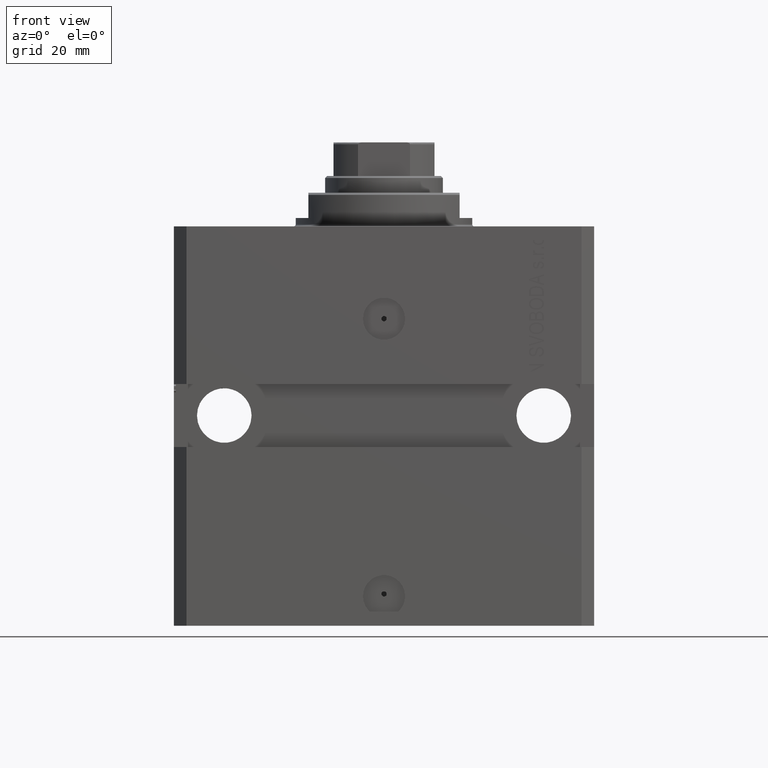
[diagram: clean part render]
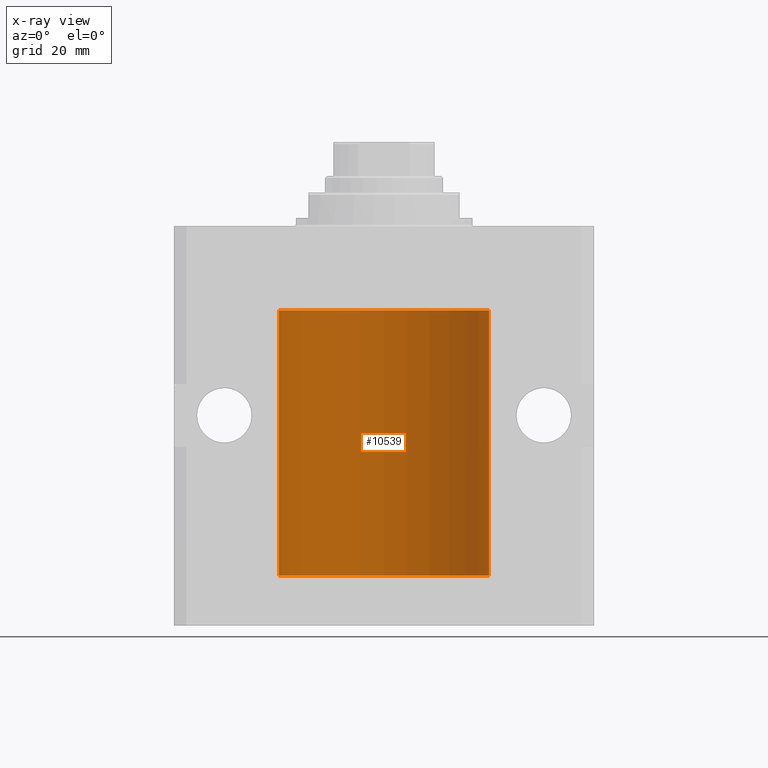
[diagram: x-ray — body ghosted, one internal face saturated and labeled with its STEP entity id]
A machine part, front view, then the same camera in x-ray: the body is ghosted and one INTERNAL B-rep face — a face not visible from any outside direction — is saturated and labeled: STEP entity #10539.
In plain terms, the highlighted cylindrical surface (partial cylindrical patch) has radius 25 mm, axis along (0, 0, 1).
Its self-contained STEP definition (entity closure, byte-faithful):
#59 = VERTEX_POINT ( 'NONE', #37948 ) ;
#576 = ORIENTED_EDGE ( 'NONE', *, *, #23678, .T. ) ;
#1169 = VECTOR ( 'NONE', #37389, 1000.000000000000000 ) ;
#1520 = ORIENTED_EDGE ( 'NONE', *, *, #21362, .F. ) ;
#1879 = DIRECTION ( 'NONE',  ( 1.000000000000000000, 0.000000000000000000, 0.000000000000000000 ) ) ;
#1985 = CARTESIAN_POINT ( 'NONE',  ( 0.000000000000000000, 0.000000000000000000, -20.00000000000000355 ) ) ;
#2143 = CARTESIAN_POINT ( 'NONE',  ( 24.99711042419772866, 0.3844422150124099380, -25.49948233212518645 ) ) ;
#2391 = CARTESIAN_POINT ( 'NONE',  ( 25.00000000000008171, 3.486950283966777142E-13, -24.37499999999673150 ) ) ;
#2590 = ORIENTED_EDGE ( 'NONE', *, *, #3292, .T. ) ;
#3113 = CARTESIAN_POINT ( 'NONE',  ( 24.99711042419772511, 0.3844422150124162108, -80.99948233212519710 ) ) ;
#3189 = CARTESIAN_POINT ( 'NONE',  ( 25.00000000000000000, 0.000000000000000000, -83.09999999999999432 ) ) ;
#3292 = EDGE_CURVE ( 'NONE', #59, #6021, #31117, .T. ) ;
#4212 = CARTESIAN_POINT ( 'NONE',  ( 24.99218627891505307, 0.6250000000082325258, -24.99999999999907629 ) ) ;
#4307 = VECTOR ( 'NONE', #32625, 1000.000000000000000 ) ;
#4349 = CARTESIAN_POINT ( 'NONE',  ( 24.99999999999999645, 0.1631302137355208348, -79.87500000000017053 ) ) ;
#4726 = DIRECTION ( 'NONE',  ( 0.000000000000000000, 0.000000000000000000, 1.000000000000000000 ) ) ;
#5363 = VERTEX_POINT ( 'NONE', #27335 ) ;
#5800 = VECTOR ( 'NONE', #47279, 1000.000000000000000 ) ;
#6021 = VERTEX_POINT ( 'NONE', #47367 ) ;
#6266 = CARTESIAN_POINT ( 'NONE',  ( 24.99218627891524136, 0.6250000000003219647, -80.66310615504829684 ) ) ;
#6898 = DIRECTION ( 'NONE',  ( 1.000000000000000000, 0.000000000000000000, 0.000000000000000000 ) ) ;
#8183 = FACE_OUTER_BOUND ( 'NONE', #19813, .T. ) ;
#9942 = VECTOR ( 'NONE', #36428, 1000.000000000000000 ) ;
#10124 = CARTESIAN_POINT ( 'NONE',  ( 24.99812887437770570, 0.3150953964769092064, -81.04594609348566792 ) ) ;
#10421 = EDGE_CURVE ( 'NONE', #37759, #59, #11106, .T. ) ;
#10504 = CARTESIAN_POINT ( 'NONE',  ( 25.00000000000000000, 0.000000000000000000, -83.09999999999999432 ) ) ;
#10539 = ADVANCED_FACE ( 'NONE', ( #8183 ), #22915, .F. ) ;
#10597 = CARTESIAN_POINT ( 'NONE',  ( 24.99218627891505307, 0.6250000000082391871, -80.49999999999907629 ) ) ;
#11106 = LINE ( 'NONE', #14982, #1169 ) ;
#11529 = EDGE_CURVE ( 'NONE', #11968, #45428, #25148, .T. ) ;
#11968 = VERTEX_POINT ( 'NONE', #10504 ) ;
#11988 = B_SPLINE_CURVE_WITH_KNOTS ( 'NONE', 3,
 ( #30409, #38113, #19564, #37409, #4349, #19331 ),
 .UNSPECIFIED., .F., .F.,
 ( 4, 2, 4 ),
 ( 0.0009772773786619218337, 0.001465694572771605777, 0.001954111766881289937 ),
 .UNSPECIFIED. ) ;
#12065 = B_SPLINE_CURVE_WITH_KNOTS ( 'NONE', 3,
 ( #20507, #35195, #20750, #20270, #2143, #17359, #17122, #31826 ),
 .UNSPECIFIED., .F., .F.,
 ( 4, 2, 2, 4 ),
 ( 5.490258492927436848E-20, 0.0002443193446654762300, 0.0004886386893309524601, 0.0009772773786619120759 ),
 .UNSPECIFIED. ) ;
#12669 = AXIS2_PLACEMENT_3D ( 'NONE', #1985, #4726, #19469 ) ;
#14655 = EDGE_CURVE ( 'NONE', #32985, #6021, #25109, .T. ) ;
#14982 = CARTESIAN_POINT ( 'NONE',  ( 25.00000000000000000, 0.000000000000000000, -83.09999999999999432 ) ) ;
#16324 = VERTEX_POINT ( 'NONE', #20871 ) ;
#16652 = CARTESIAN_POINT ( 'NONE',  ( 24.99815573945175373, 0.3253059702579641499, -24.44140848432692081 ) ) ;
#16881 = EDGE_CURVE ( 'NONE', #28927, #37759, #27927, .T. ) ;
#17122 = CARTESIAN_POINT ( 'NONE',  ( 24.99218627891524491, 0.6250000000003173017, -25.16310615504827908 ) ) ;
#17359 = CARTESIAN_POINT ( 'NONE',  ( 24.99405112861447265, 0.5574133879603401232, -25.32638777868982061 ) ) ;
#18366 = CIRCLE ( 'NONE', #44546, 25.00000000000000000 ) ;
#18805 = ORIENTED_EDGE ( 'NONE', *, *, #25425, .T. ) ;
#19331 = CARTESIAN_POINT ( 'NONE',  ( 25.00000000000008171, 3.486950403907965962E-13, -79.87499999999673150 ) ) ;
#19469 = DIRECTION ( 'NONE',  ( 1.000000000000000000, 0.000000000000000000, 0.000000000000000000 ) ) ;
#19487 = ORIENTED_EDGE ( 'NONE', *, *, #10421, .T. ) ;
#19564 = CARTESIAN_POINT ( 'NONE',  ( 24.99403021173655404, 0.5586305782632625672, -80.17476111441484932 ) ) ;
#19686 = CARTESIAN_POINT ( 'NONE',  ( 25.00000000000000000, -2.424731304940744339E-15, -81.12500000000000000 ) ) ;
#19813 = EDGE_LOOP ( 'NONE', ( #45239, #1520, #36066, #45451, #18805, #576, #42544, #40455, #19487, #2590 ) ) ;
#20270 = CARTESIAN_POINT ( 'NONE',  ( 24.99812887437769859, 0.3150953964768999360, -25.54594609348567502 ) ) ;
#20273 = CARTESIAN_POINT ( 'NONE',  ( 24.99218627891505307, 0.6250000000082325258, -24.99999999999907629 ) ) ;
#20507 = CARTESIAN_POINT ( 'NONE',  ( 25.00000000000000000, 5.649527105131028858E-17, -25.62500000000000355 ) ) ;
#20750 = CARTESIAN_POINT ( 'NONE',  ( 24.99957883295564187, 0.1636780489658712090, -25.60872961334235498 ) ) ;
#20871 = CARTESIAN_POINT ( 'NONE',  ( 24.99218627891505307, 0.6250000000082391871, -80.49999999999907629 ) ) ;
#20922 = DIRECTION ( 'NONE',  ( 0.000000000000000000, 0.000000000000000000, 1.000000000000000000 ) ) ;
#21362 = EDGE_CURVE ( 'NONE', #11968, #32985, #18366, .T. ) ;
#21495 = LINE ( 'NONE', #32092, #9942 ) ;
#22228 = EDGE_CURVE ( 'NONE', #41670, #28927, #12065, .T. ) ;
#22915 = CYLINDRICAL_SURFACE ( 'NONE', #42737, 25.00000000000000000 ) ;
#22945 = B_SPLINE_CURVE_WITH_KNOTS ( 'NONE', 3,
 ( #36164, #32070, #39316, #10124, #3113, #35454, #6266, #10597 ),
 .UNSPECIFIED., .F., .F.,
 ( 4, 2, 2, 4 ),
 ( 2.356374505740030593E-18, 0.0002443193446654823016, 0.0004886386893309623263, 0.0009772773786619218337 ),
 .UNSPECIFIED. ) ;
#23678 = EDGE_CURVE ( 'NONE', #5363, #41670, #21495, .T. ) ;
#24326 = CARTESIAN_POINT ( 'NONE',  ( -25.00000000000000000, 3.061616997868383043E-15, -83.09999999999999432 ) ) ;
#24593 = CARTESIAN_POINT ( 'NONE',  ( 24.99999999999999645, 0.1631302137355183646, -24.37500000000015277 ) ) ;
#25109 = LINE ( 'NONE', #35730, #5800 ) ;
#25148 = LINE ( 'NONE', #3189, #4307 ) ;
#25425 = EDGE_CURVE ( 'NONE', #16324, #5363, #11988, .T. ) ;
#27335 = CARTESIAN_POINT ( 'NONE',  ( 25.00000000000008171, 3.486950403907965962E-13, -79.87499999999673150 ) ) ;
#27927 = B_SPLINE_CURVE_WITH_KNOTS ( 'NONE', 3,
 ( #20273, #34968, #27964, #16652, #24593, #2391 ),
 .UNSPECIFIED., .F., .F.,
 ( 4, 2, 4 ),
 ( 0.0009772773786619120759, 0.001465694572771597754, 0.001954111766881283432 ),
 .UNSPECIFIED. ) ;
#27964 = CARTESIAN_POINT ( 'NONE',  ( 24.99403021173655404, 0.5586305782632567940, -24.67476111441487063 ) ) ;
#28927 = VERTEX_POINT ( 'NONE', #4212 ) ;
#30409 = CARTESIAN_POINT ( 'NONE',  ( 24.99218627891505307, 0.6250000000082391871, -80.49999999999907629 ) ) ;
#31117 = CIRCLE ( 'NONE', #12669, 25.00000000000000000 ) ;
#31826 = CARTESIAN_POINT ( 'NONE',  ( 24.99218627891505307, 0.6250000000082325258, -24.99999999999907629 ) ) ;
#32070 = CARTESIAN_POINT ( 'NONE',  ( 25.00000000000000355, 0.08261259269783381709, -81.12500000000001421 ) ) ;
#32092 = CARTESIAN_POINT ( 'NONE',  ( 25.00000000000000000, 0.000000000000000000, -83.09999999999999432 ) ) ;
#32625 = DIRECTION ( 'NONE',  ( -0.000000000000000000, -0.000000000000000000, 1.000000000000000000 ) ) ;
#32985 = VERTEX_POINT ( 'NONE', #24326 ) ;
#33732 = CARTESIAN_POINT ( 'NONE',  ( 25.00000000000008171, 3.486950283966777142E-13, -24.37499999999673150 ) ) ;
#34242 = EDGE_CURVE ( 'NONE', #45428, #16324, #22945, .T. ) ;
#34933 = CARTESIAN_POINT ( 'NONE',  ( 0.000000000000000000, 0.000000000000000000, -83.09999999999999432 ) ) ;
#34968 = CARTESIAN_POINT ( 'NONE',  ( 24.99218627891526268, 0.6249999999996038724, -24.83696777940135192 ) ) ;
#35165 = DIRECTION ( 'NONE',  ( -0.000000000000000000, -0.000000000000000000, 1.000000000000000000 ) ) ;
#35195 = CARTESIAN_POINT ( 'NONE',  ( 25.00000000000000355, 0.08261259269783348402, -25.62500000000000000 ) ) ;
#35454 = CARTESIAN_POINT ( 'NONE',  ( 24.99405112861447265, 0.5574133879603476727, -80.82638777868982061 ) ) ;
#35730 = CARTESIAN_POINT ( 'NONE',  ( -25.00000000000000000, 3.061616997868383043E-15, -83.09999999999999432 ) ) ;
#35848 = CARTESIAN_POINT ( 'NONE',  ( 0.000000000000000000, 0.000000000000000000, -83.09999999999999432 ) ) ;
#36066 = ORIENTED_EDGE ( 'NONE', *, *, #11529, .T. ) ;
#36164 = CARTESIAN_POINT ( 'NONE',  ( 25.00000000000000000, -2.424731304940744339E-15, -81.12500000000000000 ) ) ;
#36428 = DIRECTION ( 'NONE',  ( -0.000000000000000000, -0.000000000000000000, 1.000000000000000000 ) ) ;
#37389 = DIRECTION ( 'NONE',  ( -0.000000000000000000, -0.000000000000000000, 1.000000000000000000 ) ) ;
#37409 = CARTESIAN_POINT ( 'NONE',  ( 24.99815573945175373, 0.3253059702579679247, -79.94140848432689950 ) ) ;
#37759 = VERTEX_POINT ( 'NONE', #33732 ) ;
#37948 = CARTESIAN_POINT ( 'NONE',  ( 25.00000000000000000, 0.000000000000000000, -20.00000000000000355 ) ) ;
#38113 = CARTESIAN_POINT ( 'NONE',  ( 24.99218627891526268, 0.6249999999996124211, -80.33696777940136258 ) ) ;
#39316 = CARTESIAN_POINT ( 'NONE',  ( 24.99957883295564187, 0.1636780489658792026, -81.10872961334236209 ) ) ;
#40455 = ORIENTED_EDGE ( 'NONE', *, *, #16881, .T. ) ;
#41670 = VERTEX_POINT ( 'NONE', #43097 ) ;
#42544 = ORIENTED_EDGE ( 'NONE', *, *, #22228, .T. ) ;
#42737 = AXIS2_PLACEMENT_3D ( 'NONE', #34933, #35165, #1879 ) ;
#43097 = CARTESIAN_POINT ( 'NONE',  ( 25.00000000000000000, 5.649527105131028858E-17, -25.62500000000000355 ) ) ;
#44546 = AXIS2_PLACEMENT_3D ( 'NONE', #35848, #20922, #6898 ) ;
#45239 = ORIENTED_EDGE ( 'NONE', *, *, #14655, .F. ) ;
#45428 = VERTEX_POINT ( 'NONE', #19686 ) ;
#45451 = ORIENTED_EDGE ( 'NONE', *, *, #34242, .T. ) ;
#47279 = DIRECTION ( 'NONE',  ( -0.000000000000000000, -0.000000000000000000, 1.000000000000000000 ) ) ;
#47367 = CARTESIAN_POINT ( 'NONE',  ( -25.00000000000000000, 3.061616997868383043E-15, -20.00000000000000355 ) ) ;